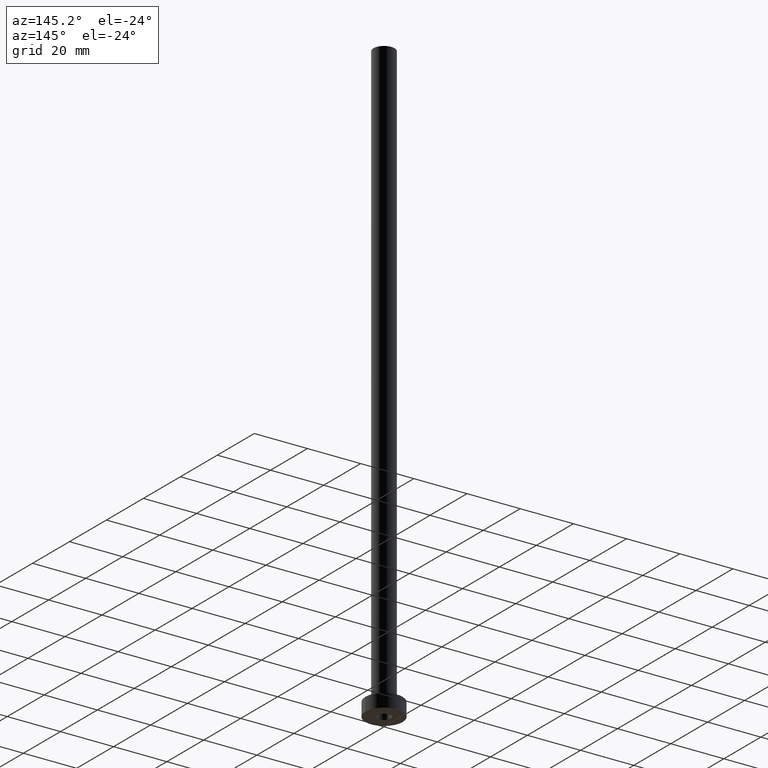
[diagram: clean part render]
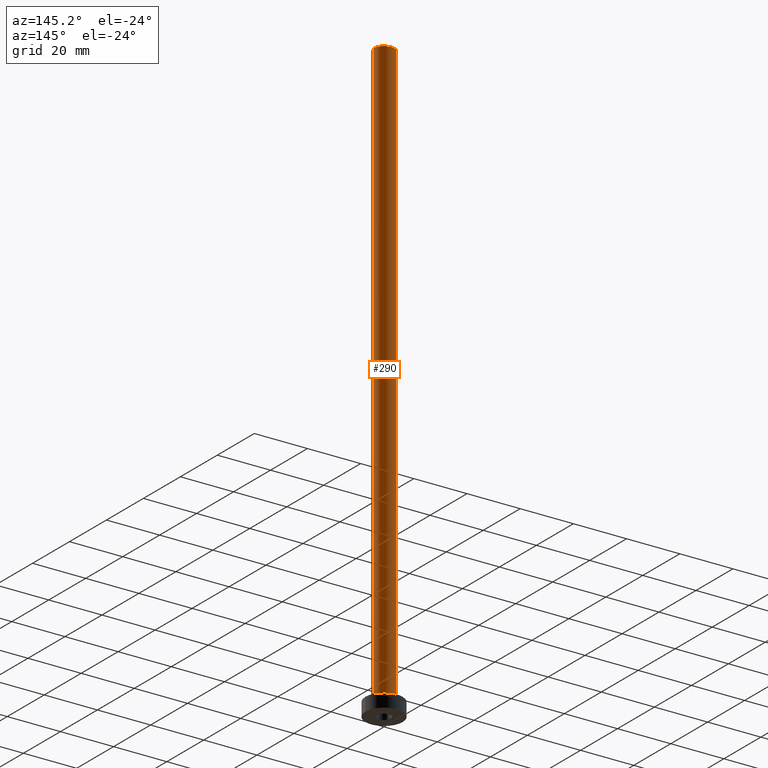
[diagram: same view with one face highlighted and labeled with its STEP entity id]
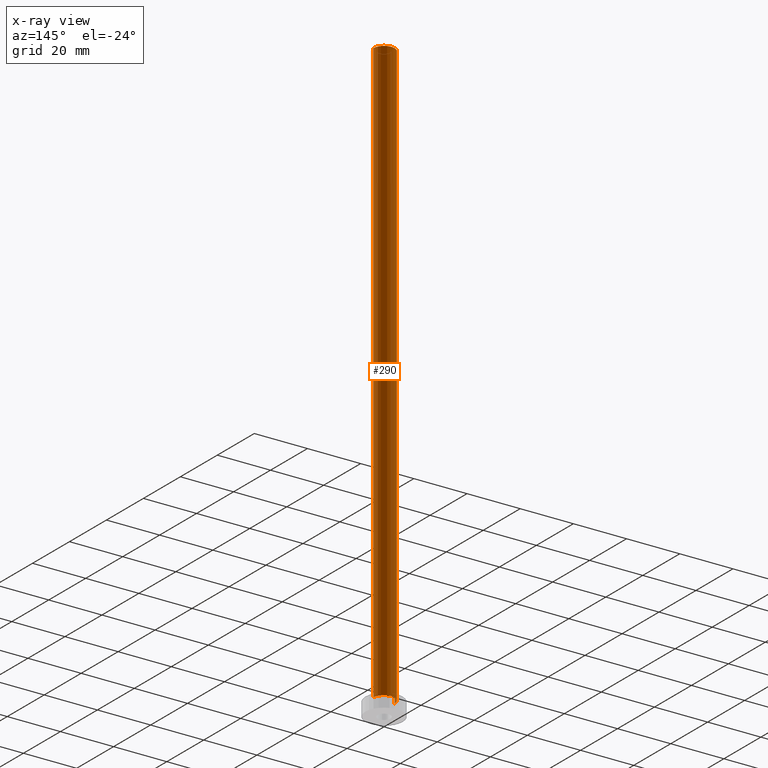
[diagram: x-ray of the same camera — body ghosted, the highlighted face saturated]
A machine part, auxiliary view. The second image highlights one B-rep face of the part: STEP entity #290.
The next image is the same camera in x-ray: the body ghosted, the highlighted face saturated — about 0% of this face is hidden behind the body in this view.
In plain terms, the highlighted cylindrical surface (edge-blend (fillet) strip) has radius 4 mm, axis along (-0, -0, -1).
Its self-contained STEP definition (entity closure, byte-faithful):
#3 = LINE ( 'NONE', #457, #106 ) ;
#20 = AXIS2_PLACEMENT_3D ( 'NONE', #113, #177, #249 ) ;
#21 = DIRECTION ( 'NONE',  ( -0.000000000000000000, -0.000000000000000000, -1.000000000000000000 ) ) ;
#31 = AXIS2_PLACEMENT_3D ( 'NONE', #425, #402, #53 ) ;
#35 = DIRECTION ( 'NONE',  ( -0.000000000000000000, -0.000000000000000000, -1.000000000000000000 ) ) ;
#44 = EDGE_LOOP ( 'NONE', ( #211, #335, #151, #194 ) ) ;
#53 = DIRECTION ( 'NONE',  ( 1.000000000000000000, 0.000000000000000000, 0.000000000000000000 ) ) ;
#68 = CARTESIAN_POINT ( 'NONE',  ( 4.000000000000000000, 4.898587196589412829E-16, 5.500000000000005329 ) ) ;
#79 = CIRCLE ( 'NONE', #31, 4.000000000000000000 ) ;
#92 = EDGE_CURVE ( 'NONE', #124, #95, #307, .T. ) ;
#95 = VERTEX_POINT ( 'NONE', #170 ) ;
#106 = VECTOR ( 'NONE', #399, 1000.000000000000000 ) ;
#113 = CARTESIAN_POINT ( 'NONE',  ( 0.000000000000000000, 0.000000000000000000, 5.500000000000005329 ) ) ;
#124 = VERTEX_POINT ( 'NONE', #140 ) ;
#140 = CARTESIAN_POINT ( 'NONE',  ( -4.000000000000000000, 0.000000000000000000, 225.0000000000000000 ) ) ;
#151 = ORIENTED_EDGE ( 'NONE', *, *, #345, .T. ) ;
#160 = VERTEX_POINT ( 'NONE', #341 ) ;
#170 = CARTESIAN_POINT ( 'NONE',  ( -4.000000000000000000, 0.000000000000000000, 5.500000000000005329 ) ) ;
#177 = DIRECTION ( 'NONE',  ( 0.000000000000000000, 0.000000000000000000, 1.000000000000000000 ) ) ;
#194 = ORIENTED_EDGE ( 'NONE', *, *, #92, .F. ) ;
#211 = ORIENTED_EDGE ( 'NONE', *, *, #461, .F. ) ;
#230 = CIRCLE ( 'NONE', #20, 4.000000000000000000 ) ;
#249 = DIRECTION ( 'NONE',  ( 1.000000000000000000, 0.000000000000000000, 0.000000000000000000 ) ) ;
#254 = FACE_OUTER_BOUND ( 'NONE', #44, .T. ) ;
#290 = ADVANCED_FACE ( 'NONE', ( #254 ), #317, .T. ) ;
#306 = VECTOR ( 'NONE', #21, 1000.000000000000000 ) ;
#307 = LINE ( 'NONE', #378, #306 ) ;
#316 = VERTEX_POINT ( 'NONE', #68 ) ;
#317 = CYLINDRICAL_SURFACE ( 'NONE', #412, 4.000000000000000000 ) ;
#335 = ORIENTED_EDGE ( 'NONE', *, *, #398, .T. ) ;
#341 = CARTESIAN_POINT ( 'NONE',  ( 4.000000000000000000, 4.898587196589412829E-16, 225.0000000000000000 ) ) ;
#345 = EDGE_CURVE ( 'NONE', #316, #95, #230, .T. ) ;
#378 = CARTESIAN_POINT ( 'NONE',  ( -4.000000000000000000, 0.000000000000000000, 225.0000000000000000 ) ) ;
#385 = DIRECTION ( 'NONE',  ( -1.000000000000000000, 0.000000000000000000, 0.000000000000000000 ) ) ;
#398 = EDGE_CURVE ( 'NONE', #160, #316, #3, .T. ) ;
#399 = DIRECTION ( 'NONE',  ( -0.000000000000000000, -0.000000000000000000, -1.000000000000000000 ) ) ;
#402 = DIRECTION ( 'NONE',  ( 0.000000000000000000, 0.000000000000000000, 1.000000000000000000 ) ) ;
#412 = AXIS2_PLACEMENT_3D ( 'NONE', #449, #35, #385 ) ;
#425 = CARTESIAN_POINT ( 'NONE',  ( 0.000000000000000000, 0.000000000000000000, 225.0000000000000000 ) ) ;
#449 = CARTESIAN_POINT ( 'NONE',  ( 0.000000000000000000, 0.000000000000000000, 225.0000000000000000 ) ) ;
#457 = CARTESIAN_POINT ( 'NONE',  ( 4.000000000000000000, 4.898587196589412829E-16, 225.0000000000000000 ) ) ;
#461 = EDGE_CURVE ( 'NONE', #160, #124, #79, .T. ) ;